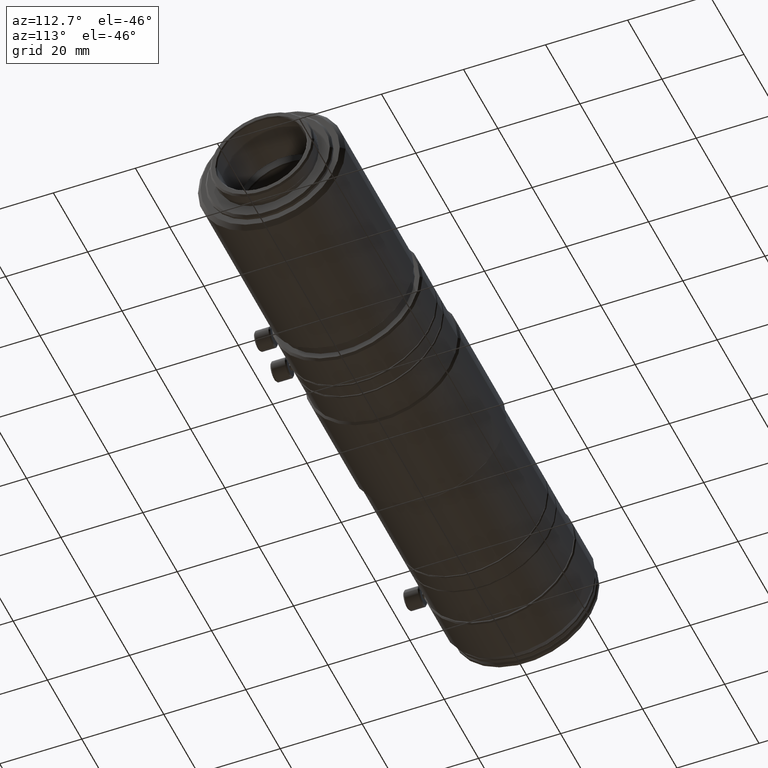
[diagram: clean part render]
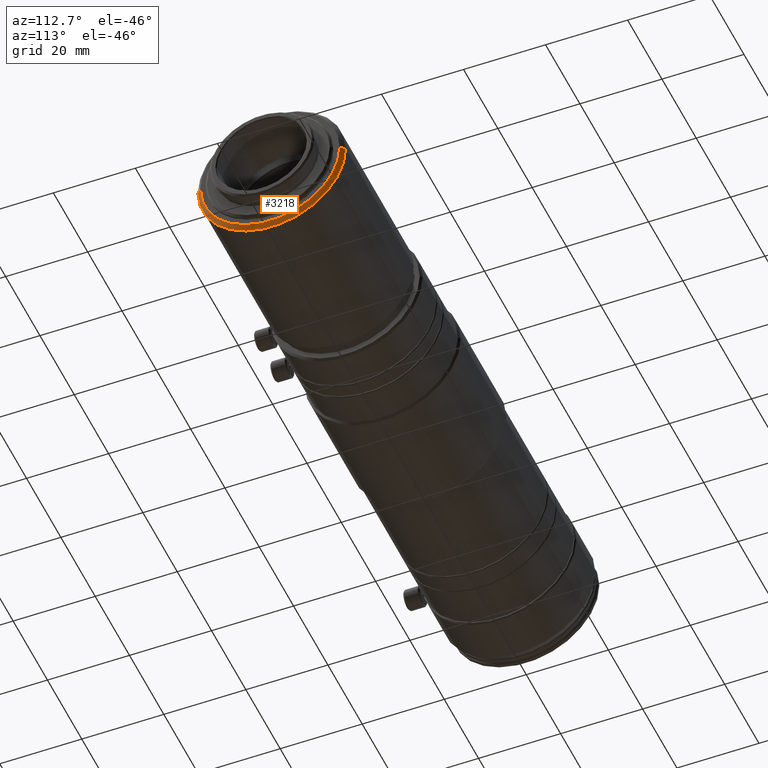
[diagram: same view with one face highlighted and labeled with its STEP entity id]
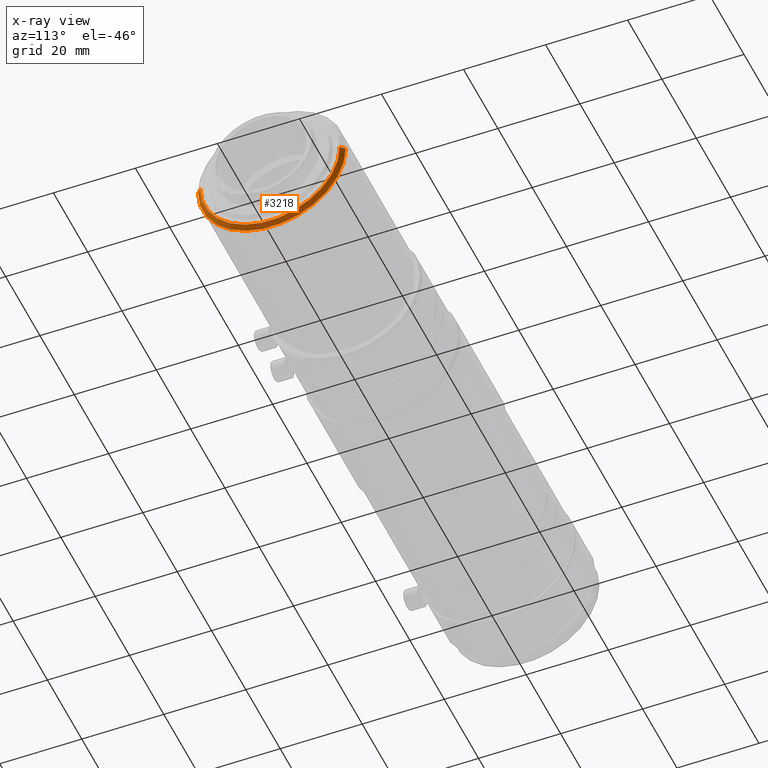
[diagram: x-ray of the same camera — body ghosted, the highlighted face saturated]
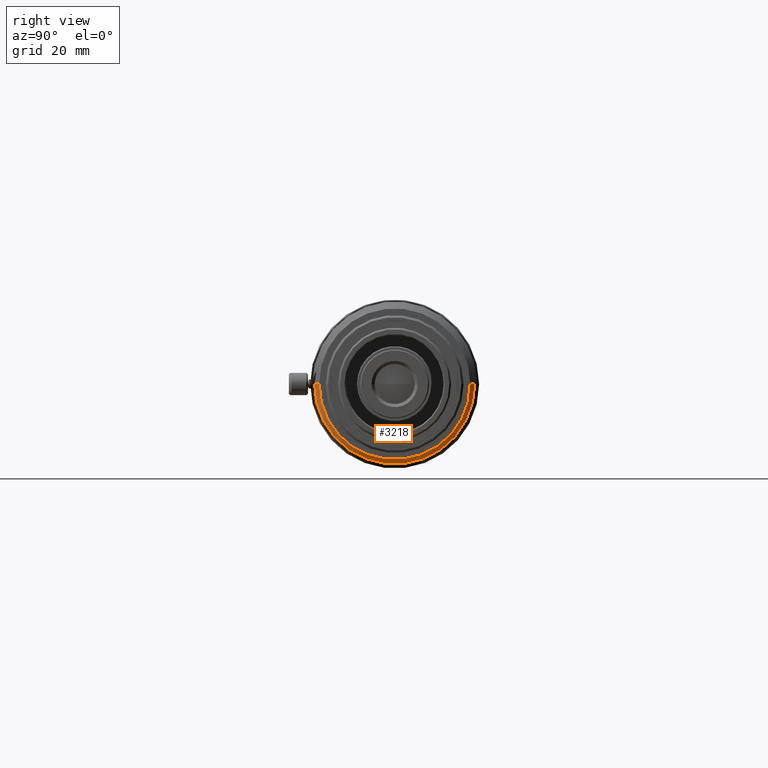
[diagram: same view with one face highlighted and labeled with its STEP entity id]
A machine part, auxiliary view. The second image highlights one B-rep face of the part: STEP entity #3218.
The next image is the same camera in x-ray: the body ghosted, the highlighted face saturated — about 0% of this face is hidden behind the body in this view.
A second angle (right view) of the same face is appended — the face is thin or edge-on in the first view.
In plain terms, the highlighted conical surface has half-angle 45 deg.
Its self-contained STEP definition (entity closure, byte-faithful):
#132 = CARTESIAN_POINT ( 'NONE',  ( 148.3244124218994400, -17.99999999999893400, 0.0000000000000000000 ) ) ;
#664 = DIRECTION ( 'NONE',  ( -1.000000000000000000, -4.558507189758049000E-015, -0.0000000000000000000 ) ) ;
#1150 = EDGE_CURVE ( 'NONE', #2702, #7189, #3613, .T. ) ;
#1197 = CARTESIAN_POINT ( 'NONE',  ( 149.3244124218993500, 6.345509401266385200E-013, 0.0000000000000000000 ) ) ;
#1210 = CARTESIAN_POINT ( 'NONE',  ( 148.3244124218992700, 18.00000000000018100, 2.204364238465181000E-015 ) ) ;
#1350 = ORIENTED_EDGE ( 'NONE', *, *, #4392, .F. ) ;
#1401 = FACE_OUTER_BOUND ( 'NONE', #5738, .T. ) ;
#1472 = ORIENTED_EDGE ( 'NONE', *, *, #2389, .T. ) ;
#1745 = DIRECTION ( 'NONE',  ( 4.898042755699349400E-015, -1.000000000000000000, 0.0000000000000000000 ) ) ;
#2225 = CARTESIAN_POINT ( 'NONE',  ( 149.3244124218993500, 6.345509401266385200E-013, 0.0000000000000000000 ) ) ;
#2308 = VECTOR ( 'NONE', #3288, 1000.000000000000100 ) ;
#2389 = EDGE_CURVE ( 'NONE', #3406, #3321, #2544, .T. ) ;
#2544 = LINE ( 'NONE', #3267, #5020 ) ;
#2687 = AXIS2_PLACEMENT_3D ( 'NONE', #1197, #5126, #1745 ) ;
#2688 = CONICAL_SURFACE ( 'NONE', #3255, 16.99999999999955200, 0.7853981633974500600 ) ;
#2702 = VERTEX_POINT ( 'NONE', #5320 ) ;
#2967 = CARTESIAN_POINT ( 'NONE',  ( 149.3244124218994400, -16.99999999999892000, 0.0000000000000000000 ) ) ;
#3218 = ADVANCED_FACE ( 'NONE', ( #1401 ), #2688, .T. ) ;
#3255 = AXIS2_PLACEMENT_3D ( 'NONE', #2225, #3334, #6131 ) ;
#3267 = CARTESIAN_POINT ( 'NONE',  ( 149.3244124218994400, -16.99999999999892000, 0.0000000000000000000 ) ) ;
#3288 = DIRECTION ( 'NONE',  ( -0.7071067811865495700, 0.7071067811865455700, 8.659560562354948900E-017 ) ) ;
#3321 = VERTEX_POINT ( 'NONE', #132 ) ;
#3334 = DIRECTION ( 'NONE',  ( -1.000000000000000000, -4.558507189758049000E-015, -0.0000000000000000000 ) ) ;
#3406 = VERTEX_POINT ( 'NONE', #2967 ) ;
#3613 = LINE ( 'NONE', #6170, #2308 ) ;
#4011 = CARTESIAN_POINT ( 'NONE',  ( 148.3244124218993500, 6.299924329368804800E-013, 0.0000000000000000000 ) ) ;
#4392 = EDGE_CURVE ( 'NONE', #7189, #3321, #5710, .T. ) ;
#4581 = DIRECTION ( 'NONE',  ( 4.625929269271598100E-015, -1.000000000000000000, 0.0000000000000000000 ) ) ;
#5020 = VECTOR ( 'NONE', #5661, 1000.000000000000000 ) ;
#5126 = DIRECTION ( 'NONE',  ( -1.000000000000000000, -4.558507189758049000E-015, -0.0000000000000000000 ) ) ;
#5162 = AXIS2_PLACEMENT_3D ( 'NONE', #4011, #664, #4581 ) ;
#5320 = CARTESIAN_POINT ( 'NONE',  ( 149.3244124218993000, 17.00000000000018800, 2.143131898507814200E-015 ) ) ;
#5661 = DIRECTION ( 'NONE',  ( -0.7071067811865431300, -0.7071067811865520100, 0.0000000000000000000 ) ) ;
#5710 = CIRCLE ( 'NONE', #5162, 17.99999999999956300 ) ;
#5738 = EDGE_LOOP ( 'NONE', ( #6518, #6898, #1472, #1350 ) ) ;
#6131 = DIRECTION ( 'NONE',  ( 4.898042755699349400E-015, -1.000000000000000000, 0.0000000000000000000 ) ) ;
#6170 = CARTESIAN_POINT ( 'NONE',  ( 149.3244124218993000, 17.00000000000018800, 2.081899558550445800E-015 ) ) ;
#6413 = EDGE_CURVE ( 'NONE', #2702, #3406, #6462, .T. ) ;
#6462 = CIRCLE ( 'NONE', #2687, 16.99999999999955200 ) ;
#6518 = ORIENTED_EDGE ( 'NONE', *, *, #1150, .F. ) ;
#6898 = ORIENTED_EDGE ( 'NONE', *, *, #6413, .T. ) ;
#7189 = VERTEX_POINT ( 'NONE', #1210 ) ;